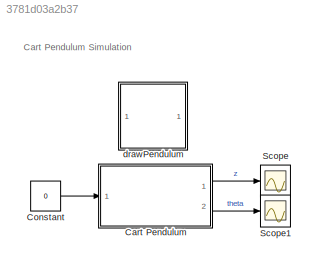
MODEL slx_3781d03a2b37
KIND model
CONFIG AbsTol = auto
CONFIG EnableMultiTasking = on
CONFIG FixedStep = auto
CONFIG MaxStep = auto
CONFIG MinStep = auto
CONFIG RelTol = 1e-3
CONFIG SampleTimeConstraint = Unconstrained
CONFIG Solver = ode45
CONFIG SolverName = ode45
CONFIG StartTime = 0.0
CONFIG StopTime = P.t_end
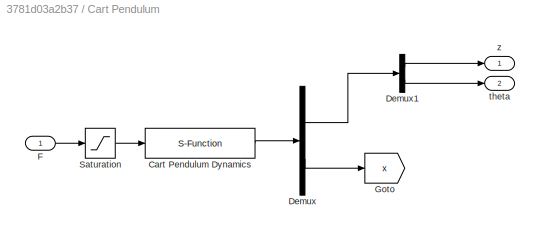
BLOCK [SubSystem] Cart Pendulum
  Ports = [1, 2]
  RequestExecContextInheritance = off
BLOCK [S-Function] Cart Pendulum/Cart Pendulum Dynamics
  EnableBusSupport = off
  FunctionName = cartPendulumDynamics
  Parameters = P
  Ports = [1, 1]
  SFcnIsStateOwnerBlock = off
  SFunctionDeploymentMode = off
BLOCK [Demux] Cart Pendulum/Demux
  Outputs = [2;4]
  Ports = [1, 2]
BLOCK [Demux] Cart Pendulum/Demux1
  Outputs = 2
  Ports = [1, 2]
BLOCK [Inport] Cart Pendulum/F
BLOCK [Goto] Cart Pendulum/Goto
  GotoTag = x
  TagVisibility = global
BLOCK [Saturate] Cart Pendulum/Saturation
  LowerLimit = -P.F_max
  UpperLimit = P.F_max
BLOCK [Outport] Cart Pendulum/theta
  Port = 2
  VectorParamsAs1DForOutWhenUnconnected = off
BLOCK [Outport] Cart Pendulum/z
  VectorParamsAs1DForOutWhenUnconnected = off
BLOCK [Constant] Constant
  Value = 0
BLOCK [Scope] Scope
  Floating = off
  NumInputPorts = 1
  Ports = [1]
  ScopeSpecificationString = Simulink.scopes.TimeScopeBlockCfg('CurrentConfiguration', extmgr.ConfigurationSet(extmgr.Configuration('Core','General UI',true),extmgr.Configuration('Core','Source UI',true),extmgr.Configuration('Sources','WiredSimulink',true),extmgr.Configuration('Visuals','Time Domain',true,'SerializedDisplays',{struct('MinYLimReal','-0.68821','MaxYLimReal','0.69379','YLabelReal','','MinYLimMag','0.00000','MaxY...<+1374ch>
BLOCK [Scope] Scope1
  Floating = off
  NumInputPorts = 1
  Ports = [1]
  ScopeSpecificationString = Simulink.scopes.TimeScopeBlockCfg('CurrentConfiguration', extmgr.ConfigurationSet(extmgr.Configuration('Core','General UI',true),extmgr.Configuration('Core','Source UI',true),extmgr.Configuration('Sources','WiredSimulink',true,'DataLoggingVariableName','ScopeData1'),extmgr.Configuration('Visuals','Time Domain',true,'SerializedDisplays',{struct('MinYLimReal','-0.14386','MaxYLimReal','0.14192','YLab...<+1369ch>
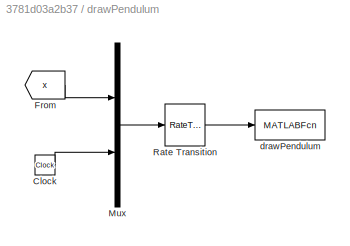
BLOCK [SubSystem] drawPendulum
  Ports = []
  RequestExecContextInheritance = off
BLOCK [Clock] drawPendulum/Clock
BLOCK [From] drawPendulum/From
  GotoTag = x
  TagVisibility = global
BLOCK [Mux] drawPendulum/Mux
  DisplayOption = bar
  Inputs = 2
  Ports = [2, 1]
BLOCK [RateTransition] drawPendulum/Rate Transition
  OutPortSampleTime = P.t_plot
BLOCK [MATLABFcn] drawPendulum/drawPendulum
  MATLABFcn = cartPendulumAnimation(u)
  OutputDimensions = 0
  Ports = [1]
ANNOTATION (root): Cart Pendulum Simulation
LINE Cart Pendulum/Cart Pendulum Dynamics:1 -> Cart Pendulum/Demux:1
LINE Cart Pendulum/Demux1:1 -> Cart Pendulum/z:1
LINE Cart Pendulum/Demux1:2 -> Cart Pendulum/theta:1
LINE Cart Pendulum/Demux:1 -> Cart Pendulum/Demux1:1
LINE Cart Pendulum/Demux:2 -> Cart Pendulum/Goto:1
LINE Cart Pendulum/F:1 -> Cart Pendulum/Saturation:1
LINE Cart Pendulum/Saturation:1 -> Cart Pendulum/Cart Pendulum Dynamics:1
LINE Cart Pendulum:1 -> Scope:1
LINE Cart Pendulum:2 -> Scope1:1
LINE Constant:1 -> Cart Pendulum:1
LINE drawPendulum/Clock:1 -> drawPendulum/Mux:2
LINE drawPendulum/From:1 -> drawPendulum/Mux:1
LINE drawPendulum/Mux:1 -> drawPendulum/Rate Transition:1
LINE drawPendulum/Rate Transition:1 -> drawPendulum/drawPendulum:1
